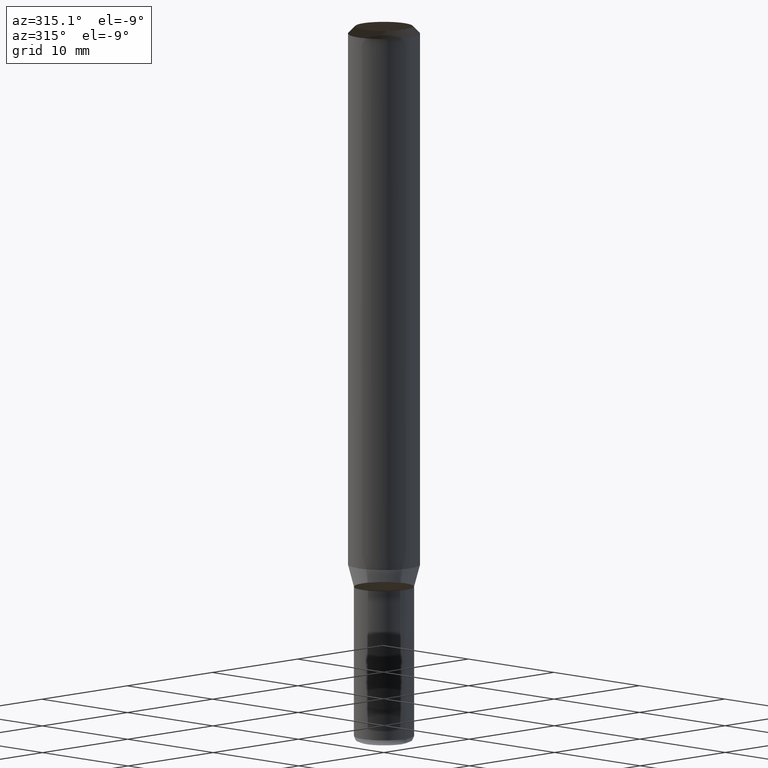
[diagram: clean part render]
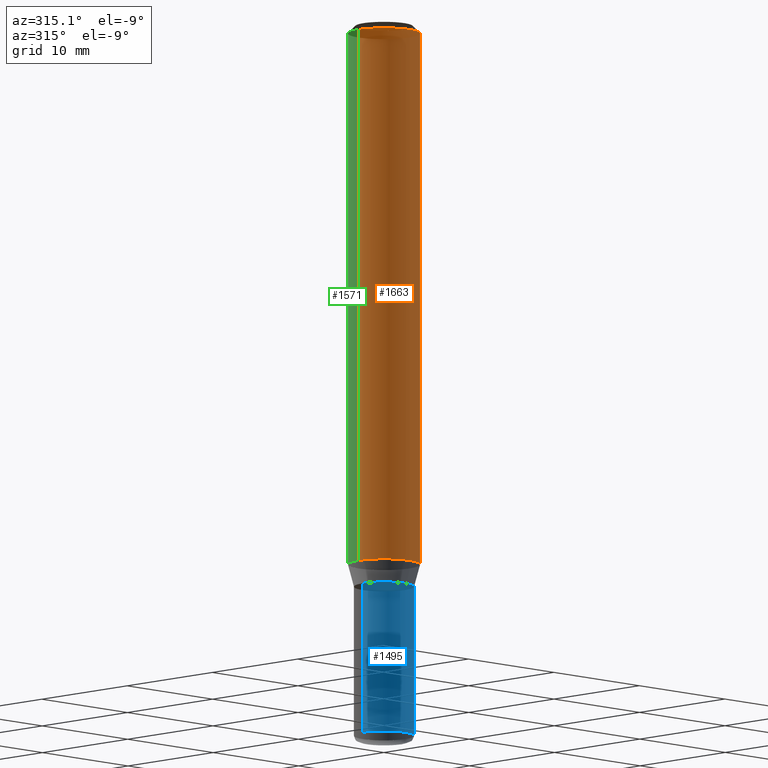
[diagram: same view with three faces highlighted in distinct colors, each labeled with its STEP entity id]
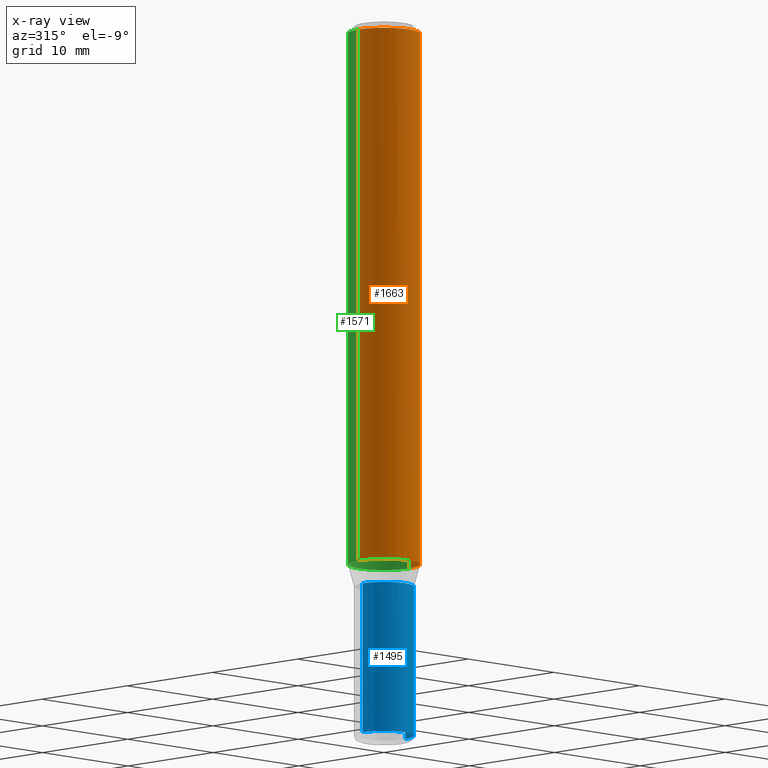
[diagram: x-ray of the same camera — body ghosted, the three highlighted faces saturated]
A machine part, auxiliary view with three faces highlighted in distinct colors.
The next image is the same camera in x-ray (body ghosted, the three faces saturated) — at least one of them is partly hidden behind the body in this view.
Their STEP definitions:

[orange] entity #1663 — the highlighted face is a freeform B-spline surface patch.
#1334=CARTESIAN_POINT('',(3.0,0.0,0.0));
#1338=CARTESIAN_POINT('',(-3.0,0.0,0.0));
#1339=CARTESIAN_POINT('',(3.0,0.0,44.533974596216));
#1343=CARTESIAN_POINT('',(-3.0,0.0,44.533974596216));
#1350=CARTESIAN_POINT('',(-3.0,-3.0,0.0));
#1351=CARTESIAN_POINT('',(0.0,-3.0,0.0));
#1352=CARTESIAN_POINT('',(3.0,-3.0,0.0));
#1353=CARTESIAN_POINT('',(-3.0,-3.0,44.533974596216));
#1354=CARTESIAN_POINT('',(0.0,-3.0,44.533974596216));
#1355=CARTESIAN_POINT('',(3.0,-3.0,44.533974596216));
#1644=(
BOUNDED_SURFACE()
B_SPLINE_SURFACE(1,2,(
(#1338,#1350,#1351,#1352,#1334),
(#1343,#1353,#1354,#1355,#1339)
), .UNSPECIFIED.,.F.,.F.,.F.)
B_SPLINE_SURFACE_WITH_KNOTS((2,2),(3,2,3),(
0.0,1.0),(
0.0,0.5,1.0), .UNSPECIFIED.)
GEOMETRIC_REPRESENTATION_ITEM()
RATIONAL_B_SPLINE_SURFACE(((1.0,0.707106781187,1.0,0.707106781187,1.0),
(1.0,0.707106781187,1.0,0.707106781187,1.0)
))
REPRESENTATION_ITEM('')
SURFACE()
);
#1645=(
BOUNDED_CURVE()
B_SPLINE_CURVE(1,(#1343,#1338),.UNSPECIFIED.,.F.,.F.)
B_SPLINE_CURVE_WITH_KNOTS((2,2),
(0.0,1.0),.UNSPECIFIED.)
CURVE()
GEOMETRIC_REPRESENTATION_ITEM()
RATIONAL_B_SPLINE_CURVE((1.0,1.0))
REPRESENTATION_ITEM('')
);
#1646=(
BOUNDED_CURVE()
B_SPLINE_CURVE(2,(#1338,#1350,#1351,#1352,#1334),.UNSPECIFIED.,.F.,.F.)
B_SPLINE_CURVE_WITH_KNOTS((3,2,3),
(0.0,0.5,1.0),.UNSPECIFIED.)
CURVE()
GEOMETRIC_REPRESENTATION_ITEM()
RATIONAL_B_SPLINE_CURVE((1.0,0.707106781187,1.0,0.707106781187,1.0))
REPRESENTATION_ITEM('')
);
#1647=(
BOUNDED_CURVE()
B_SPLINE_CURVE(1,(#1334,#1339),.UNSPECIFIED.,.F.,.F.)
B_SPLINE_CURVE_WITH_KNOTS((2,2),
(0.0,1.0),.UNSPECIFIED.)
CURVE()
GEOMETRIC_REPRESENTATION_ITEM()
RATIONAL_B_SPLINE_CURVE((1.0,1.0))
REPRESENTATION_ITEM('')
);
#1648=(
BOUNDED_CURVE()
B_SPLINE_CURVE(2,(#1339,#1355,#1354,#1353,#1343),.UNSPECIFIED.,.F.,.F.)
B_SPLINE_CURVE_WITH_KNOTS((3,2,3),
(0.0,0.5,1.0),.UNSPECIFIED.)
CURVE()
GEOMETRIC_REPRESENTATION_ITEM()
RATIONAL_B_SPLINE_CURVE((1.0,0.707106781187,1.0,0.707106781187,1.0))
REPRESENTATION_ITEM('')
);
#1649=VERTEX_POINT('',#1334);
#1650=VERTEX_POINT('',#1338);
#1651=VERTEX_POINT('',#1339);
#1652=VERTEX_POINT('',#1343);
#1653=EDGE_CURVE('',#1652,#1650,#1645,.T.);
#1654=EDGE_CURVE('',#1650,#1649,#1646,.T.);
#1655=EDGE_CURVE('',#1649,#1651,#1647,.T.);
#1656=EDGE_CURVE('',#1651,#1652,#1648,.T.);
#1657=ORIENTED_EDGE('',*,*,#1653,.T.);
#1658=ORIENTED_EDGE('',*,*,#1654,.T.);
#1659=ORIENTED_EDGE('',*,*,#1655,.T.);
#1660=ORIENTED_EDGE('',*,*,#1656,.T.);
#1661=EDGE_LOOP('',(#1657,#1658,#1659,#1660));
#1662=FACE_OUTER_BOUND('',#1661,.T.);
#1663=ADVANCED_FACE('',(#1662),#1644,.T.);

[blue] entity #1495 — the highlighted face is a freeform B-spline surface patch.
#1305=CARTESIAN_POINT('',(2.5,0.0,-14.366025403784));
#1309=CARTESIAN_POINT('',(-2.5,0.0,-14.366025403784));
#1310=CARTESIAN_POINT('',(2.5,0.0,-1.866025403784));
#1314=CARTESIAN_POINT('',(-2.5,0.0,-1.866025403784));
#1328=CARTESIAN_POINT('',(-2.5,-2.5,-14.366025403784));
#1329=CARTESIAN_POINT('',(0.0,-2.5,-14.366025403784));
#1330=CARTESIAN_POINT('',(2.5,-2.5,-14.366025403784));
#1331=CARTESIAN_POINT('',(-2.5,-2.5,-1.866025403784));
#1332=CARTESIAN_POINT('',(0.0,-2.5,-1.866025403784));
#1333=CARTESIAN_POINT('',(2.5,-2.5,-1.866025403784));
#1476=(
BOUNDED_SURFACE()
B_SPLINE_SURFACE(1,2,(
(#1309,#1328,#1329,#1330,#1305),
(#1314,#1331,#1332,#1333,#1310)
), .UNSPECIFIED.,.F.,.F.,.F.)
B_SPLINE_SURFACE_WITH_KNOTS((2,2),(3,2,3),(
0.0,1.0),(
0.0,0.5,1.0), .UNSPECIFIED.)
GEOMETRIC_REPRESENTATION_ITEM()
RATIONAL_B_SPLINE_SURFACE(((1.0,0.707106781187,1.0,0.707106781187,1.0),
(1.0,0.707106781187,1.0,0.707106781187,1.0)
))
REPRESENTATION_ITEM('')
SURFACE()
);
#1477=(
BOUNDED_CURVE()
B_SPLINE_CURVE(1,(#1314,#1309),.UNSPECIFIED.,.F.,.F.)
B_SPLINE_CURVE_WITH_KNOTS((2,2),
(0.0,1.0),.UNSPECIFIED.)
CURVE()
GEOMETRIC_REPRESENTATION_ITEM()
RATIONAL_B_SPLINE_CURVE((1.0,1.0))
REPRESENTATION_ITEM('')
);
#1478=(
BOUNDED_CURVE()
B_SPLINE_CURVE(2,(#1309,#1328,#1329,#1330,#1305),.UNSPECIFIED.,.F.,.F.)
B_SPLINE_CURVE_WITH_KNOTS((3,2,3),
(0.0,0.5,1.0),.UNSPECIFIED.)
CURVE()
GEOMETRIC_REPRESENTATION_ITEM()
RATIONAL_B_SPLINE_CURVE((1.0,0.707106781187,1.0,0.707106781187,1.0))
REPRESENTATION_ITEM('')
);
#1479=(
BOUNDED_CURVE()
B_SPLINE_CURVE(1,(#1305,#1310),.UNSPECIFIED.,.F.,.F.)
B_SPLINE_CURVE_WITH_KNOTS((2,2),
(0.0,1.0),.UNSPECIFIED.)
CURVE()
GEOMETRIC_REPRESENTATION_ITEM()
RATIONAL_B_SPLINE_CURVE((1.0,1.0))
REPRESENTATION_ITEM('')
);
#1480=(
BOUNDED_CURVE()
B_SPLINE_CURVE(2,(#1310,#1333,#1332,#1331,#1314),.UNSPECIFIED.,.F.,.F.)
B_SPLINE_CURVE_WITH_KNOTS((3,2,3),
(0.0,0.5,1.0),.UNSPECIFIED.)
CURVE()
GEOMETRIC_REPRESENTATION_ITEM()
RATIONAL_B_SPLINE_CURVE((1.0,0.707106781187,1.0,0.707106781187,1.0))
REPRESENTATION_ITEM('')
);
#1481=VERTEX_POINT('',#1305);
#1482=VERTEX_POINT('',#1309);
#1483=VERTEX_POINT('',#1310);
#1484=VERTEX_POINT('',#1314);
#1485=EDGE_CURVE('',#1484,#1482,#1477,.T.);
#1486=EDGE_CURVE('',#1482,#1481,#1478,.T.);
#1487=EDGE_CURVE('',#1481,#1483,#1479,.T.);
#1488=EDGE_CURVE('',#1483,#1484,#1480,.T.);
#1489=ORIENTED_EDGE('',*,*,#1485,.T.);
#1490=ORIENTED_EDGE('',*,*,#1486,.T.);
#1491=ORIENTED_EDGE('',*,*,#1487,.T.);
#1492=ORIENTED_EDGE('',*,*,#1488,.T.);
#1493=EDGE_LOOP('',(#1489,#1490,#1491,#1492));
#1494=FACE_OUTER_BOUND('',#1493,.T.);
#1495=ADVANCED_FACE('',(#1494),#1476,.T.);

[green] entity #1571 — the highlighted face is a freeform B-spline surface patch.
#1334=CARTESIAN_POINT('',(3.0,0.0,0.0));
#1335=CARTESIAN_POINT('',(3.0,3.0,0.0));
#1336=CARTESIAN_POINT('',(0.0,3.0,0.0));
#1337=CARTESIAN_POINT('',(-3.0,3.0,0.0));
#1338=CARTESIAN_POINT('',(-3.0,0.0,0.0));
#1339=CARTESIAN_POINT('',(3.0,0.0,44.533974596216));
#1340=CARTESIAN_POINT('',(3.0,3.0,44.533974596216));
#1341=CARTESIAN_POINT('',(0.0,3.0,44.533974596216));
#1342=CARTESIAN_POINT('',(-3.0,3.0,44.533974596216));
#1343=CARTESIAN_POINT('',(-3.0,0.0,44.533974596216));
#1552=(
BOUNDED_SURFACE()
B_SPLINE_SURFACE(1,2,(
(#1334,#1335,#1336,#1337,#1338),
(#1339,#1340,#1341,#1342,#1343)
), .UNSPECIFIED.,.F.,.F.,.F.)
B_SPLINE_SURFACE_WITH_KNOTS((2,2),(3,2,3),(
0.0,1.0),(
0.0,0.5,1.0), .UNSPECIFIED.)
GEOMETRIC_REPRESENTATION_ITEM()
RATIONAL_B_SPLINE_SURFACE(((1.0,0.707106781187,1.0,0.707106781187,1.0),
(1.0,0.707106781187,1.0,0.707106781187,1.0)
))
REPRESENTATION_ITEM('')
SURFACE()
);
#1553=(
BOUNDED_CURVE()
B_SPLINE_CURVE(2,(#1339,#1340,#1341,#1342,#1343),.UNSPECIFIED.,.F.,.F.)
B_SPLINE_CURVE_WITH_KNOTS((3,2,3),
(0.0,0.5,1.0),.UNSPECIFIED.)
CURVE()
GEOMETRIC_REPRESENTATION_ITEM()
RATIONAL_B_SPLINE_CURVE((1.0,0.707106781187,1.0,0.707106781187,1.0))
REPRESENTATION_ITEM('')
);
#1554=(
BOUNDED_CURVE()
B_SPLINE_CURVE(1,(#1343,#1338),.UNSPECIFIED.,.F.,.F.)
B_SPLINE_CURVE_WITH_KNOTS((2,2),
(0.0,1.0),.UNSPECIFIED.)
CURVE()
GEOMETRIC_REPRESENTATION_ITEM()
RATIONAL_B_SPLINE_CURVE((1.0,1.0))
REPRESENTATION_ITEM('')
);
#1555=(
BOUNDED_CURVE()
B_SPLINE_CURVE(2,(#1338,#1337,#1336,#1335,#1334),.UNSPECIFIED.,.F.,.F.)
B_SPLINE_CURVE_WITH_KNOTS((3,2,3),
(0.0,0.5,1.0),.UNSPECIFIED.)
CURVE()
GEOMETRIC_REPRESENTATION_ITEM()
RATIONAL_B_SPLINE_CURVE((1.0,0.707106781187,1.0,0.707106781187,1.0))
REPRESENTATION_ITEM('')
);
#1556=(
BOUNDED_CURVE()
B_SPLINE_CURVE(1,(#1334,#1339),.UNSPECIFIED.,.F.,.F.)
B_SPLINE_CURVE_WITH_KNOTS((2,2),
(0.0,1.0),.UNSPECIFIED.)
CURVE()
GEOMETRIC_REPRESENTATION_ITEM()
RATIONAL_B_SPLINE_CURVE((1.0,1.0))
REPRESENTATION_ITEM('')
);
#1557=VERTEX_POINT('',#1334);
#1558=VERTEX_POINT('',#1338);
#1559=VERTEX_POINT('',#1339);
#1560=VERTEX_POINT('',#1343);
#1561=EDGE_CURVE('',#1559,#1560,#1553,.T.);
#1562=EDGE_CURVE('',#1560,#1558,#1554,.T.);
#1563=EDGE_CURVE('',#1558,#1557,#1555,.T.);
#1564=EDGE_CURVE('',#1557,#1559,#1556,.T.);
#1565=ORIENTED_EDGE('',*,*,#1561,.T.);
#1566=ORIENTED_EDGE('',*,*,#1562,.T.);
#1567=ORIENTED_EDGE('',*,*,#1563,.T.);
#1568=ORIENTED_EDGE('',*,*,#1564,.T.);
#1569=EDGE_LOOP('',(#1565,#1566,#1567,#1568));
#1570=FACE_OUTER_BOUND('',#1569,.T.);
#1571=ADVANCED_FACE('',(#1570),#1552,.T.);